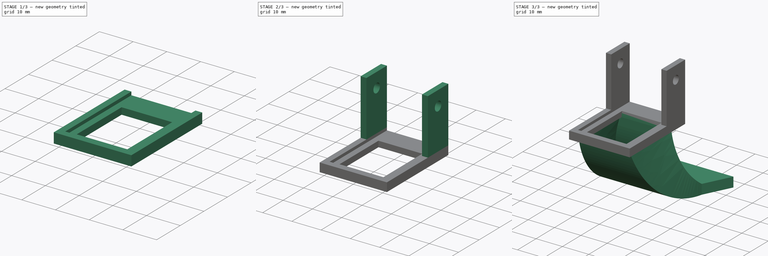
[diagram: build sequence overview — one tinted view per stage of 3, left to right]
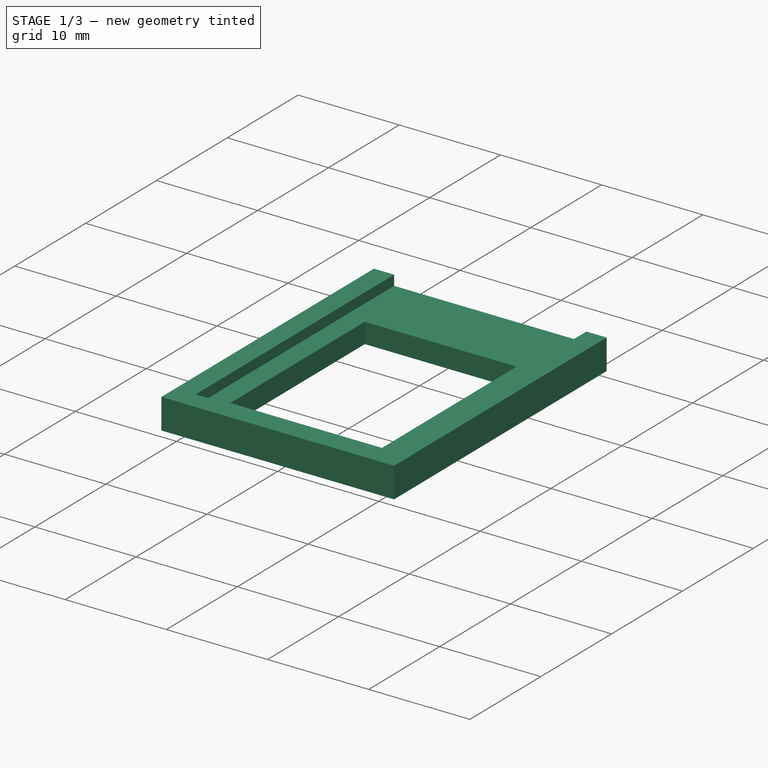
[diagram: stage 1 of 3 — iso view after this stage's code; geometry added in this stage tinted green]
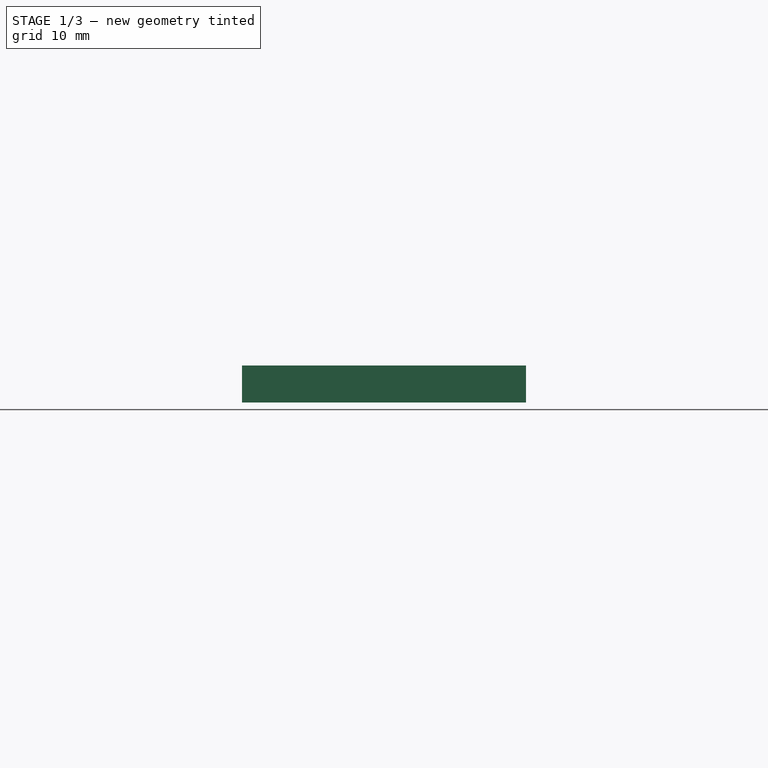
[diagram: stage 1 of 3 — front view after this stage's code; geometry added in this stage tinted green]
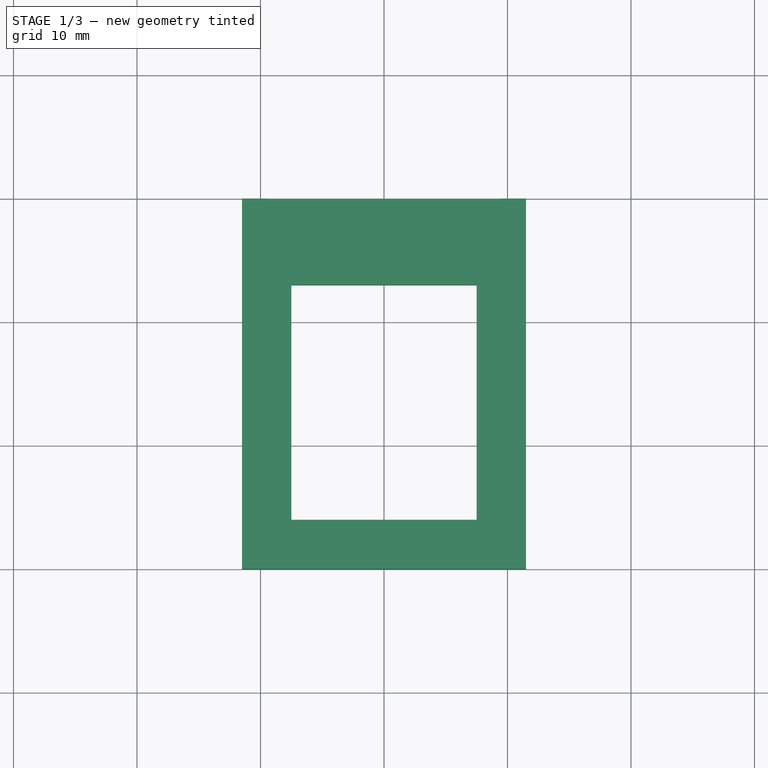
[diagram: stage 1 of 3 — top view after this stage's code; geometry added in this stage tinted green]
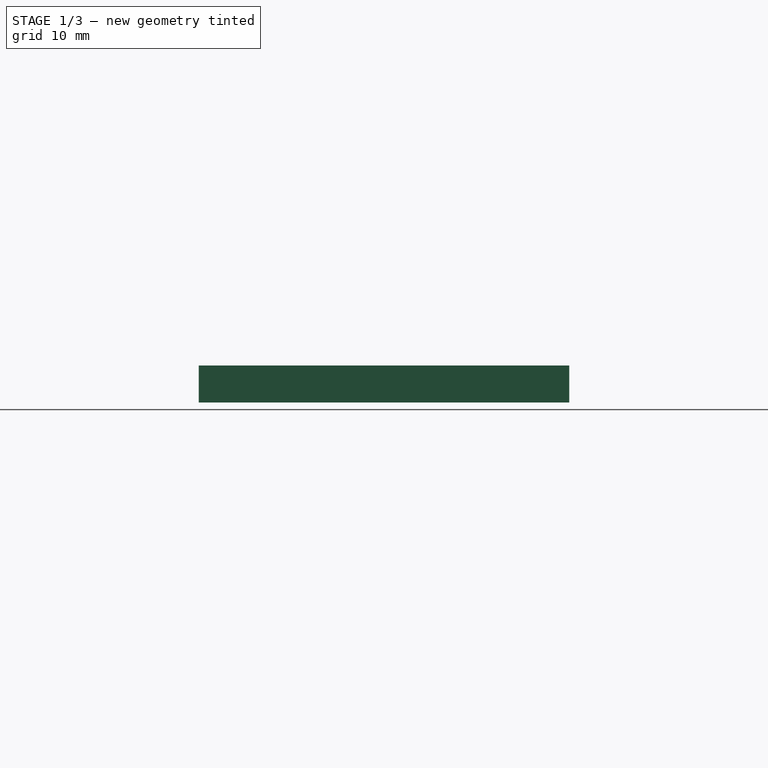
[diagram: stage 1 of 3 — right view after this stage's code; geometry added in this stage tinted green]
FCSTD DOCUMENT  (FreeCAD 0.18R15441 (Git))
Label: BackTurbinePipe_Direct
License: All rights reserved
LicenseURL: http://en.wikipedia.org/wiki/All_rights_reserved
objects: Sketcher::SketchObject×7, PartDesign::Pad×3, PartDesign::Plane×2, PartDesign::AdditivePipe×2, PartDesign::Pocket×1, PartDesign::Body×1, App::Part×1
note: 22 computed .brp shape members not serialized (recipe doc carries the construction recipe); baked Part::Feature solids carry a one-line shape summary decoded from their .brp

FEATURE [Sketcher::SketchObject] Sketch  label="CasingBaseSketch"
  MapMode = 5
  Support = -> [XY_Plane001]
  sketch-geometry (8):
    g0: LineSegment StartX=-11.5 StartY=-10 StartZ=0 EndX=11.5 EndY=-10 EndZ=0
    g1: LineSegment StartX=11.5 StartY=-10 StartZ=0 EndX=11.5 EndY=-40 EndZ=0
    g2: LineSegment StartX=11.5 StartY=-40 StartZ=0 EndX=-11.5 EndY=-40 EndZ=0
    g3: LineSegment StartX=-11.5 StartY=-40 StartZ=0 EndX=-11.5 EndY=-10 EndZ=0
    g4: LineSegment StartX=-7.5 StartY=-17 StartZ=0 EndX=7.5 EndY=-17 EndZ=0
    g5: LineSegment StartX=7.5 StartY=-17 StartZ=0 EndX=7.5 EndY=-36 EndZ=0
    g6: LineSegment StartX=7.5 StartY=-36 StartZ=0 EndX=-7.5 EndY=-36 EndZ=0
    g7: LineSegment StartX=-7.5 StartY=-36 StartZ=0 EndX=-7.5 EndY=-17 EndZ=0
  constraints (23):
    c: Coincident(g0,g1)
    c: Coincident(g1,g2)
    c: Coincident(g2,g3)
    c: Coincident(g3,g0)
    c: Horizontal(g2)
    c: Vertical(g1)
    c: Vertical(g3)
    c: Coincident(g4,g5)
    c: Coincident(g5,g6)
    c: Coincident(g6,g7)
    c: Coincident(g7,g4)
    c: Horizontal(g4)
    c: Horizontal(g6)
    c: Vertical(g5)
    c: Vertical(g7)
    c: Distance(g6) = 15
    c: Distance(g7) = 19
    c: Distance(g4,g3) = 4
    c: Distance(g4,g1) = 4
    c: Distance(g6,g2) = 4
    c: Distance(g4,g0) = 7
    c: DistanceY(g-1,g2) = -40
    c: Symmetric(g0,g0,g-2)
FEATURE [PartDesign::Pad] Pad  label="CasingBasePad"
  Length = 2
  Length2 = 100
  Profile = -> Sketch
  Reversed = true
  Type = 0
FEATURE [Sketcher::SketchObject] Sketch001  label="CasingInterfaceSketch"
  ExternalGeometry = -> [Sketch]
  MapMode = 5
  Support = -> [XY_Plane001]
  sketch-geometry (9):
    g0: LineSegment StartX=-11.5 StartY=-40 StartZ=0 EndX=11.5 EndY=-40 EndZ=0
    g1: LineSegment StartX=-11.5 StartY=-40 StartZ=0 EndX=-11.5 EndY=-10 EndZ=0
    g2: LineSegment StartX=11.5 StartY=-40 StartZ=0 EndX=11.5 EndY=-10 EndZ=0
    g3: LineSegment StartX=-11.5 StartY=-10 StartZ=0 EndX=-9.5 EndY=-10 EndZ=0
    g4: LineSegment StartX=-9.5 StartY=-10 StartZ=0 EndX=-9.5 EndY=-38 EndZ=0
    g5: LineSegment StartX=-9.5 StartY=-38 StartZ=0 EndX=9.5 EndY=-38 EndZ=0
    g6: LineSegment StartX=9.5 StartY=-38 StartZ=0 EndX=9.5 EndY=-10 EndZ=0
    g7: LineSegment StartX=9.5 StartY=-10 StartZ=0 EndX=11.5 EndY=-10 EndZ=0
    g8: LineSegment [constr] StartX=-9.5 StartY=-38 StartZ=0 EndX=-9.5 EndY=-40 EndZ=0
  constraints (25):
    c: Coincident(g0,g-3)
    c: Coincident(g0,g-3)
    c: Coincident(g1,g0)
    c: Vertical(g1)
    c: Coincident(g2,g0)
    c: Vertical(g2)
    c: Coincident(g3,g1)
    c: Coincident(g4,g3)
    c: Vertical(g4)
    c: Coincident(g5,g4)
    c: Horizontal(g5)
    c: Coincident(g6,g5)
    c: Vertical(g6)
    c: Coincident(g7,g6)
    c: Coincident(g7,g2)
    c: Horizontal(g7)
    c: Equal(g1,g2)
    c: Horizontal(g3)
    c: Coincident(g8,g4)
    c: PointOnObject(g8,g0)
    c: Vertical(g8)
    c: Equal(g3,g7)
    c: Equal(g7,g8)
    c: Distance(g3) = 2
    c: Distance(g1) = 30
FEATURE [PartDesign::Pad] Pad001  label="CasingInterfacePad"
  BaseFeature = -> Pad
  Length = 1
  Length2 = 100
  Profile = -> Sketch001
  Type = 0
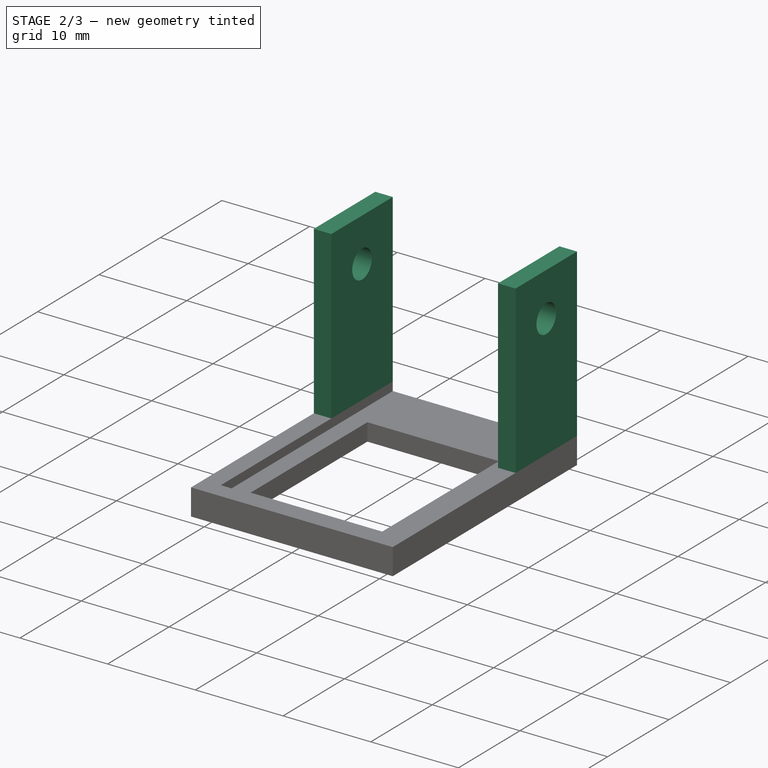
[diagram: stage 2 of 3 — iso view after this stage's code; geometry added in this stage tinted green]
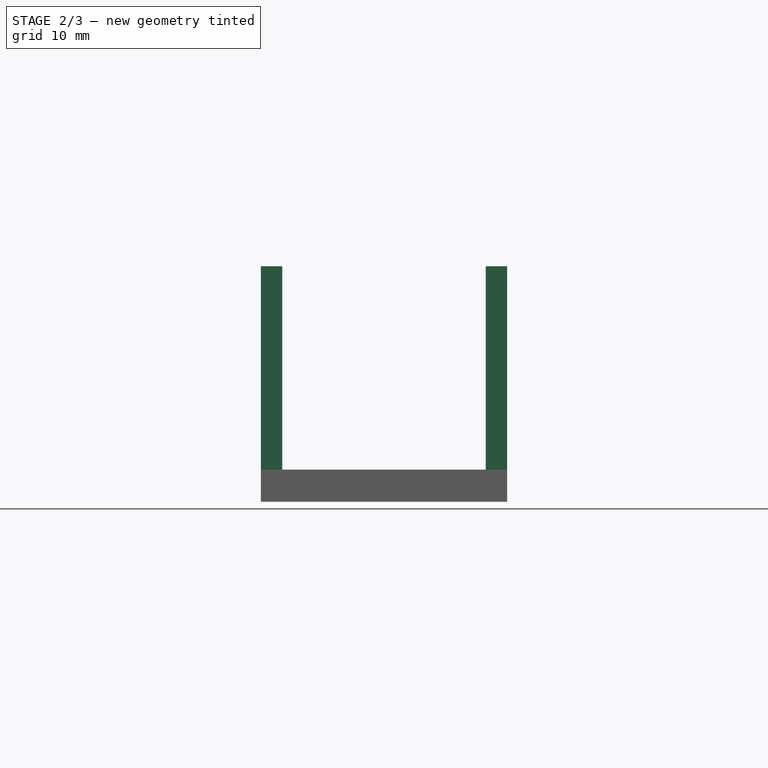
[diagram: stage 2 of 3 — front view after this stage's code; geometry added in this stage tinted green]
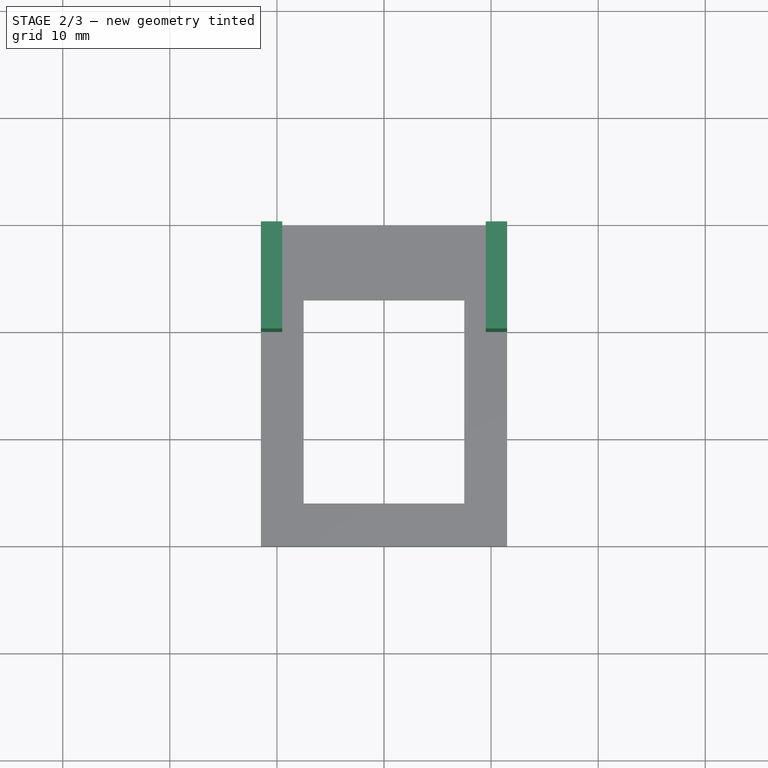
[diagram: stage 2 of 3 — top view after this stage's code; geometry added in this stage tinted green]
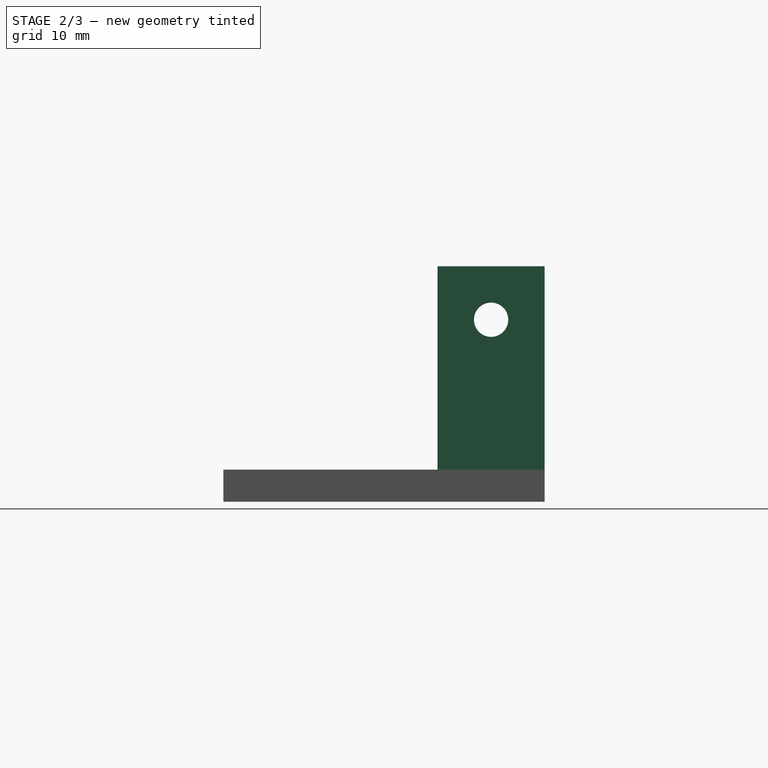
[diagram: stage 2 of 3 — right view after this stage's code; geometry added in this stage tinted green]
FEATURE [Sketcher::SketchObject] Sketch002  label="CasingClippingSketch"
  ExternalGeometry = -> [Sketch001]
  MapMode = 5
  Placement = pos=(0,0,0) rot=(0.57735,0.57735,0.57735;2.0944rad)
  Support = -> [YZ_Plane001]
  sketch-geometry (8):
    g0: Circle CenterX=-15 CenterY=15 CenterZ=0 NormalX=0 NormalY=0 NormalZ=1 AngleXU=0 Radius=1.6
    g1: LineSegment StartX=-10 StartY=-2e-12 StartZ=0 EndX=-10 EndY=20 EndZ=0
    g2: LineSegment StartX=-10 StartY=20 StartZ=0 EndX=-20 EndY=20 EndZ=0
    g3: LineSegment StartX=-20 StartY=20 StartZ=0 EndX=-20 EndY=0 EndZ=0
    g4: LineSegment StartX=-20 StartY=0 StartZ=0 EndX=-10 EndY=-2e-12 EndZ=0
    g5: LineSegment [constr] StartX=-15 StartY=15 StartZ=0 EndX=-10 EndY=15 EndZ=0
    g6: LineSegment [constr] StartX=-15 StartY=15 StartZ=0 EndX=-20 EndY=15 EndZ=0
    g7: LineSegment [constr] StartX=-15 StartY=15 StartZ=0 EndX=-15 EndY=20 EndZ=0
  constraints (23):
    c: DistanceX(g-2,g0) = -15
    c: DistanceY(g-1,g0) = 15
    c: Coincident(g1,g-3)
    c: Vertical(g1)
    c: Coincident(g2,g1)
    c: Horizontal(g2)
    c: Coincident(g3,g2)
    c: PointOnObject(g3,g-1)
    c: Vertical(g3)
    c: Coincident(g4,g3)
    c: Coincident(g4,g1)
    c: Coincident(g5,g0)
    c: PointOnObject(g5,g1)
    c: Horizontal(g5)
    c: Coincident(g6,g0)
    c: PointOnObject(g6,g3)
    c: Horizontal(g6)
    c: Equal(g6,g5)
    c: Coincident(g7,g0)
    c: PointOnObject(g7,g2)
    c: Vertical(g7)
    c: Equal(g7,g6)
    c: Radius(g0) = 1.6
FEATURE [PartDesign::Pad] Pad002  label="CasingClippingPad"
  BaseFeature = -> Pad001
  Length = 23
  Length2 = 100
  Midplane = true
  Profile = -> Sketch002
  Type = 0
FEATURE [PartDesign::Pocket] Pocket  label="CasingClippingPocket"
  BaseFeature = -> Pad002
  Length = 19
  Length2 = 100
  Midplane = true
  Profile = -> Sketch002
  Type = 0
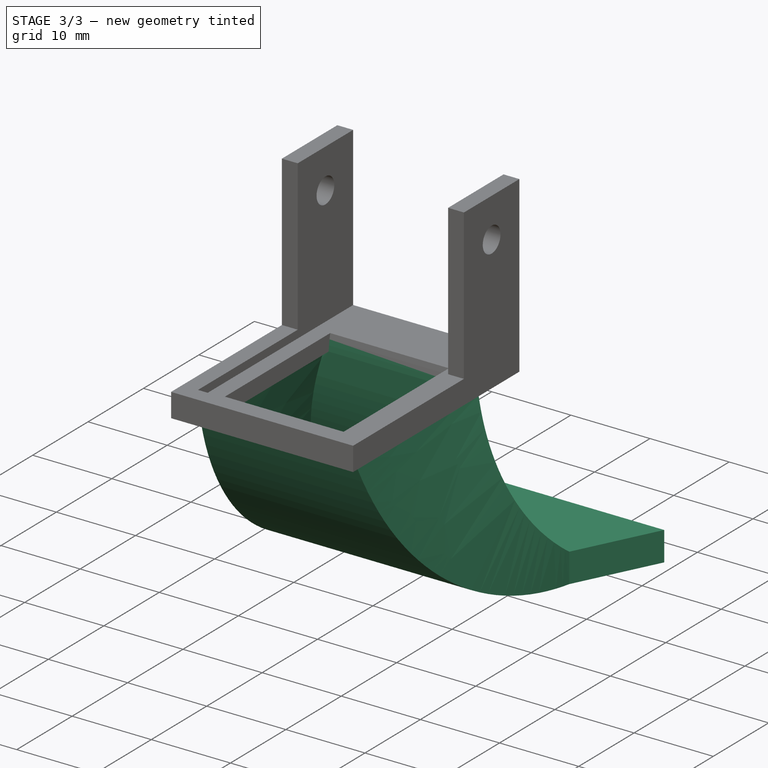
[diagram: stage 3 of 3 — iso view after this stage's code; geometry added in this stage tinted green]
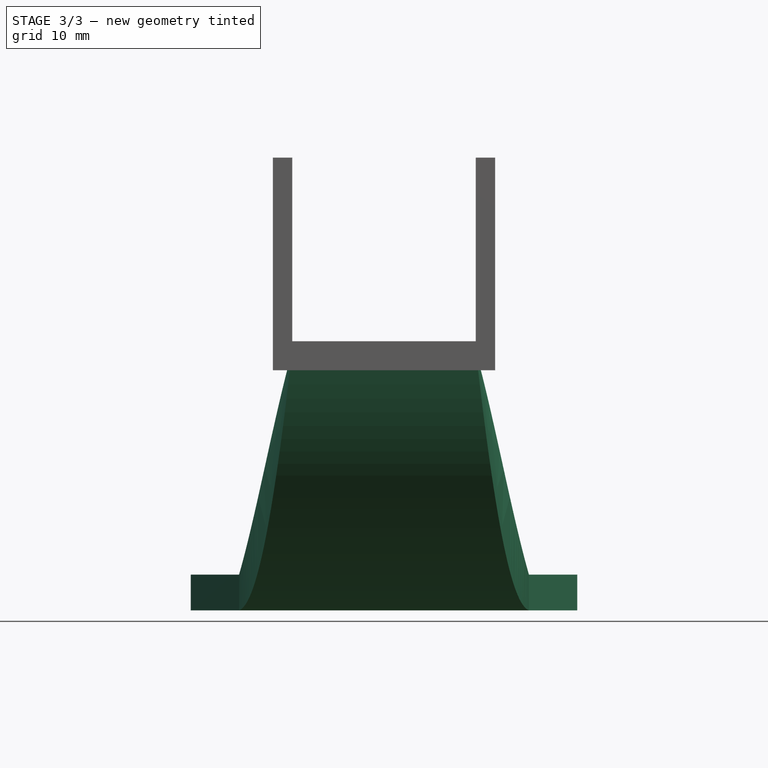
[diagram: stage 3 of 3 — front view after this stage's code; geometry added in this stage tinted green]
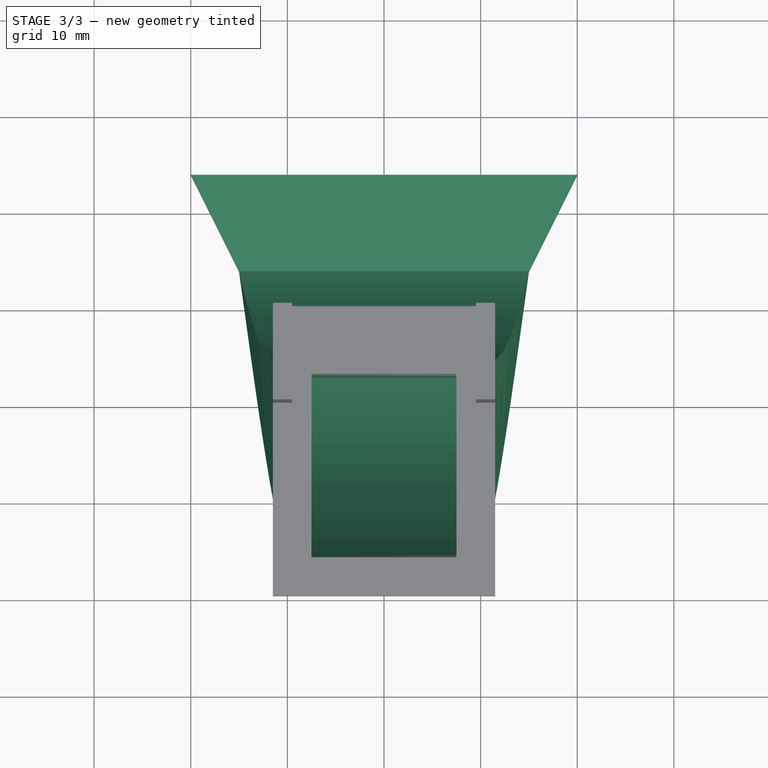
[diagram: stage 3 of 3 — top view after this stage's code; geometry added in this stage tinted green]
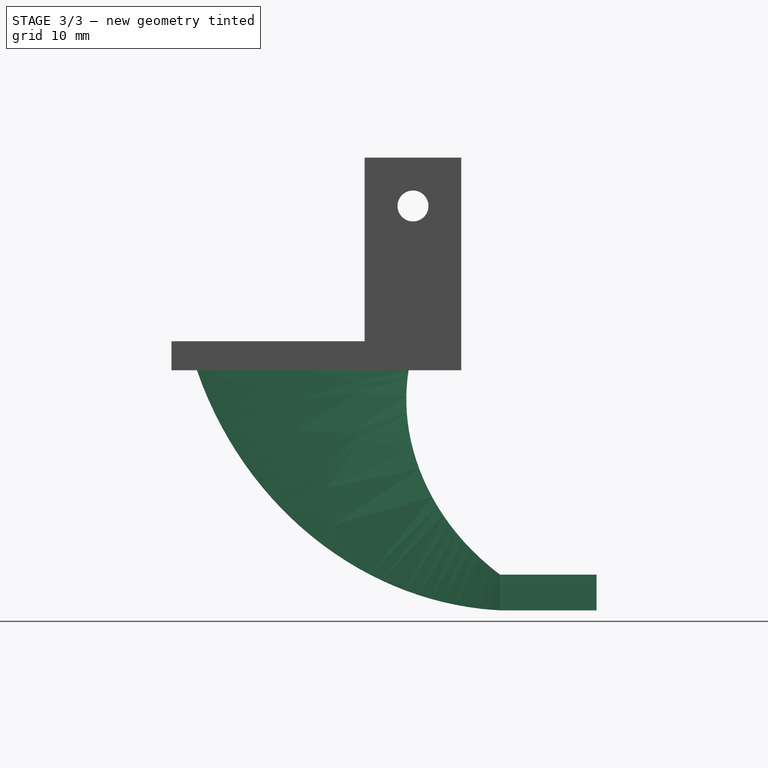
[diagram: stage 3 of 3 — right view after this stage's code; geometry added in this stage tinted green]
FEATURE [Sketcher::SketchObject] Sketch003  label="AirPipeStartSketch"
  ExternalGeometry = -> [Sketch]
  MapMode = 5
  Support = -> [XY_Plane001]
  sketch-geometry (12):
    g0: LineSegment StartX=-7.5 StartY=-36 StartZ=0 EndX=-7.5 EndY=-17 EndZ=0
    g1: LineSegment StartX=-7.5 StartY=-17 StartZ=0 EndX=7.5 EndY=-17 EndZ=0
    g2: LineSegment StartX=7.5 StartY=-17 StartZ=0 EndX=7.5 EndY=-36 EndZ=0
    g3: LineSegment StartX=7.5 StartY=-36 StartZ=0 EndX=-7.5 EndY=-36 EndZ=0
    g4: LineSegment StartX=-9.5 StartY=-15 StartZ=0 EndX=-9.5 EndY=-38 EndZ=0
    g5: LineSegment StartX=-9.5 StartY=-38 StartZ=0 EndX=9.5 EndY=-38 EndZ=0
    g6: LineSegment StartX=9.5 StartY=-38 StartZ=0 EndX=9.5 EndY=-15 EndZ=0
    g7: LineSegment StartX=9.5 StartY=-15 StartZ=0 EndX=-9.5 EndY=-15 EndZ=0
    g8: LineSegment [constr] StartX=-7.5 StartY=-17 StartZ=0 EndX=-7.5 EndY=-15 EndZ=0
    g9: LineSegment [constr] StartX=-7.5 StartY=-17 StartZ=0 EndX=-9.5 EndY=-17 EndZ=0
    g10: LineSegment [constr] StartX=-7.5 StartY=-36 StartZ=0 EndX=-7.5 EndY=-38 EndZ=0
    g11: LineSegment [constr] StartX=7.5 StartY=-36 StartZ=0 EndX=9.5 EndY=-36 EndZ=0
  constraints (32):
    c: Coincident(g0,g-5)
    c: Coincident(g0,g-4)
    c: Coincident(g1,g0)
    c: Coincident(g1,g-6)
    c: Coincident(g2,g1)
    c: Coincident(g2,g-6)
    c: Coincident(g3,g2)
    c: Coincident(g3,g0)
    c: Vertical(g4)
    c: Coincident(g5,g4)
    c: Horizontal(g5)
    c: Coincident(g6,g5)
    c: Vertical(g6)
    c: Coincident(g7,g6)
    c: Coincident(g7,g4)
    c: Horizontal(g7)
    c: Coincident(g8,g0)
    c: PointOnObject(g8,g7)
    c: Vertical(g8)
    c: Coincident(g9,g0)
    c: PointOnObject(g9,g4)
    c: Coincident(g10,g0)
    c: PointOnObject(g10,g5)
    c: Vertical(g10)
    c: Equal(g10,g9)
    c: Equal(g9,g8)
    c: Distance(g8) = 2
    c: Coincident(g11,g2)
    c: PointOnObject(g11,g6)
    c: Horizontal(g11)
    c: Equal(g11,g10)
    c: Horizontal(g9)
FEATURE [Sketcher::SketchObject] Sketch004  label="AirPipePathSketch"
  ExternalGeometry = -> [Sketch003]
  MapMode = 5
  Placement = pos=(0,0,0) rot=(0.57735,0.57735,0.57735;2.0944rad)
  Support = -> [YZ_Plane001]
  sketch-geometry (5):
    g0: LineSegment [constr] StartX=-36 StartY=-4.9116e-12 StartZ=0 EndX=-26.5 EndY=-3.8389e-12 EndZ=0
    g1: LineSegment [constr] StartX=-17 StartY=-2.7663e-12 StartZ=0 EndX=-26.5 EndY=-3.8389e-12 EndZ=0
    g2: LineSegment [constr] StartX=-6 StartY=0 StartZ=0 EndX=-6 EndY=-25 EndZ=0
    g3: ArcOfCircle CenterX=3.29223 CenterY=3.52463 CenterZ=0 NormalX=0 NormalY=0 NormalZ=1 AngleXU=0 Radius=30 StartAngle=3.25935 EndAngle=4.39747
    g4: LineSegment StartX=-6 StartY=-25 StartZ=0 EndX=4 EndY=-25 EndZ=0
  constraints (15):
    c: Coincident(g0,g-3)
    c: Coincident(g1,g-4)
    c: Coincident(g1,g0)
    c: Equal(g1,g0)
    c: Parallel(g1,g0)
    c: PointOnObject(g2,g-1)
    c: Vertical(g2)
    c: Distance(g1,g2) = 11
    c: Distance(g2) = 25
    c: Coincident(g3,g0)
    c: Coincident(g3,g2)
    c: Radius(g3) = 30
    c: Coincident(g4,g3)
    c: Horizontal(g4)
    c: Distance(g4) = 10
FEATURE [PartDesign::Plane] DatumPlane  label="AirPipeMidPlane"
  Length = 48.6579
  MapMode = 7
  Placement = pos=(2.146e-12,-6,-25) rot=(1,0,0;1.5708rad)
  ResizeMode = 0
  Support = -> [Sketch004]
  Width = 55.5079
FEATURE [Sketcher::SketchObject] Sketch005  label="AirPipeMidSketch"
  MapMode = 5
  Placement = pos=(2.146e-12,-6,-25) rot=(1,0,0;1.5708rad)
  Support = -> [DatumPlane]
  sketch-geometry (12):
    g0: LineSegment StartX=-14.4 StartY=1.25 StartZ=0 EndX=14.4 EndY=1.25 EndZ=0
    g1: LineSegment StartX=14.4 StartY=1.25 StartZ=0 EndX=14.4 EndY=-1.25 EndZ=0
    g2: LineSegment StartX=14.4 StartY=-1.25 StartZ=0 EndX=-14.4 EndY=-1.25 EndZ=0
    g3: LineSegment StartX=-14.4 StartY=-1.25 StartZ=0 EndX=-14.4 EndY=1.25 EndZ=0
    g4: LineSegment StartX=-15 StartY=1.85 StartZ=0 EndX=15 EndY=1.85 EndZ=0
    g5: LineSegment StartX=15 StartY=1.85 StartZ=0 EndX=15 EndY=-1.85 EndZ=0
    g6: LineSegment StartX=15 StartY=-1.85 StartZ=0 EndX=-15 EndY=-1.85 EndZ=0
    g7: LineSegment StartX=-15 StartY=-1.85 StartZ=0 EndX=-15 EndY=1.85 EndZ=0
    g8: LineSegment [constr] StartX=-14.4 StartY=-1.25 StartZ=0 EndX=-14.4 EndY=-1.85 EndZ=0
    g9: LineSegment [constr] StartX=-14.4 StartY=-1.25 StartZ=0 EndX=-15 EndY=-1.25 EndZ=0
    g10: LineSegment [constr] StartX=14.4 StartY=1.25 StartZ=0 EndX=14.4 EndY=1.85 EndZ=0
    g11: LineSegment [constr] StartX=14.4 StartY=-1.25 StartZ=0 EndX=15 EndY=-1.25 EndZ=0
  constraints (34):
    c: Coincident(g0,g1)
    c: Coincident(g1,g2)
    c: Coincident(g2,g3)
    c: Coincident(g3,g0)
    c: Horizontal(g0)
    c: Vertical(g1)
    c: Coincident(g4,g5)
    c: Coincident(g5,g6)
    c: Coincident(g6,g7)
    c: Coincident(g7,g4)
    c: Horizontal(g4)
    c: Horizontal(g6)
    c: Vertical(g5)
    c: Vertical(g7)
    c: Symmetric(g2,g1,g-2)
    c: Coincident(g8,g2)
    c: PointOnObject(g8,g6)
    c: Vertical(g8)
    c: Coincident(g9,g2)
    c: PointOnObject(g9,g7)
    c: Horizontal(g9)
    c: Coincident(g10,g0)
    c: PointOnObject(g10,g4)
    c: Vertical(g10)
    c: Equal(g10,g9)
    c: Equal(g9,g8)
    c: Symmetric(g2,g0,g-1)
    c: Distance(g9) = 0.6
    c: Distance(g3) = 2.5
    c: Distance(g4) = 30
    c: Coincident(g11,g1)
    c: PointOnObject(g11,g5)
    c: Horizontal(g11)
    c: Equal(g11,g10)
FEATURE [PartDesign::AdditivePipe] AdditivePipe  label="AirPipe_MidSection"
  AuxilleryCurvelinear = true
  AuxillerySpineTangent = false
  BaseFeature = -> Pocket
  Binormal = (0,0,0)
  Mode = 0
  Profile = -> Sketch003
  Sections = -> [Sketch005]
  Spine = -> Sketch004 [Edge1]
  SpineTangent = false
  Transformation = 1
  Transition = 0
FEATURE [PartDesign::Plane] DatumPlane001  label="AirPipeEndPlane"
  Length = 48.6579
  MapMode = 7
  Placement = pos=(3.2739e-12,4,-25) rot=(1,0,0;1.5708rad)
  ResizeMode = 0
  Support = -> [Sketch004]
  Width = 55.5079
FEATURE [Sketcher::SketchObject] Sketch006  label="AirPipeEndSketch"
  MapMode = 5
  Placement = pos=(3.2739e-12,4,-25) rot=(1,0,0;1.5708rad)
  Support = -> [DatumPlane001]
  sketch-geometry (12):
    g0: LineSegment StartX=-19.4 StartY=1.25 StartZ=0 EndX=19.4 EndY=1.25 EndZ=0
    g1: LineSegment StartX=19.4 StartY=1.25 StartZ=0 EndX=19.4 EndY=-1.25 EndZ=0
    g2: LineSegment StartX=19.4 StartY=-1.25 StartZ=0 EndX=-19.4 EndY=-1.25 EndZ=0
    g3: LineSegment StartX=-19.4 StartY=-1.25 StartZ=0 EndX=-19.4 EndY=1.25 EndZ=0
    g4: LineSegment StartX=-20 StartY=1.85 StartZ=0 EndX=20 EndY=1.85 EndZ=0
    g5: LineSegment StartX=20 StartY=1.85 StartZ=0 EndX=20 EndY=-1.85 EndZ=0
    g6: LineSegment StartX=20 StartY=-1.85 StartZ=0 EndX=-20 EndY=-1.85 EndZ=0
    g7: LineSegment StartX=-20 StartY=-1.85 StartZ=0 EndX=-20 EndY=1.85 EndZ=0
    g8: LineSegment [constr] StartX=-19.4 StartY=-1.25 StartZ=0 EndX=-19.4 EndY=-1.85 EndZ=0
    g9: LineSegment [constr] StartX=-19.4 StartY=-1.25 StartZ=0 EndX=-20 EndY=-1.25 EndZ=0
    g10: LineSegment [constr] StartX=19.4 StartY=1.25 StartZ=0 EndX=19.4 EndY=1.85 EndZ=0
    g11: LineSegment [constr] StartX=19.4 StartY=-1.25 StartZ=0 EndX=20 EndY=-1.25 EndZ=0
  constraints (34):
    c: Coincident(g0,g1)
    c: Coincident(g1,g2)
    c: Coincident(g2,g3)
    c: Coincident(g3,g0)
    c: Horizontal(g0)
    c: Vertical(g1)
    c: Coincident(g4,g5)
    c: Coincident(g5,g6)
    c: Coincident(g6,g7)
    c: Coincident(g7,g4)
    c: Horizontal(g4)
    c: Horizontal(g6)
    c: Vertical(g5)
    c: Vertical(g7)
    c: Symmetric(g2,g1,g-2)
    c: Coincident(g8,g2)
    c: PointOnObject(g8,g6)
    c: Vertical(g8)
    c: Coincident(g9,g2)
    c: PointOnObject(g9,g7)
    c: Horizontal(g9)
    c: Coincident(g10,g0)
    c: PointOnObject(g10,g4)
    c: Vertical(g10)
    c: Equal(g10,g9)
    c: Equal(g9,g8)
    c: Symmetric(g2,g0,g-1)
    c: Distance(g9) = 0.6
    c: Distance(g3) = 2.5
    c: Distance(g4) = 40
    c: Coincident(g11,g1)
    c: PointOnObject(g11,g5)
    c: Horizontal(g11)
    c: Equal(g11,g10)
FEATURE [PartDesign::AdditivePipe] AdditivePipe001  label="AirPipe_EndSection"
  AuxilleryCurvelinear = true
  AuxillerySpineTangent = false
  BaseFeature = -> AdditivePipe
  Binormal = (0,0,0)
  Mode = 0
  Profile = -> Sketch005
  Sections = -> [Sketch006]
  Spine = -> Sketch004 [Edge2]
  SpineTangent = false
  Transformation = 1
  Transition = 0
FEATURE [PartDesign::Body] Body  label="PipeBody"
  Group = -> [Sketch,Pad,Sketch001,Pad001,Sketch002,Pad002,Pocket,Sketch003,Sketch004,DatumPlane,Sketch005,AdditivePipe,DatumPlane001,Sketch006,AdditivePipe001]
  Origin = -> Origin001
  Tip = -> AdditivePipe001
FEATURE [App::Part] Part  label="PipePart"
  Group = -> [Body]
  License = CC BY 3.0
  LicenseURL = http://creativecommons.org/licenses/by/3.0/
  Origin = -> Origin
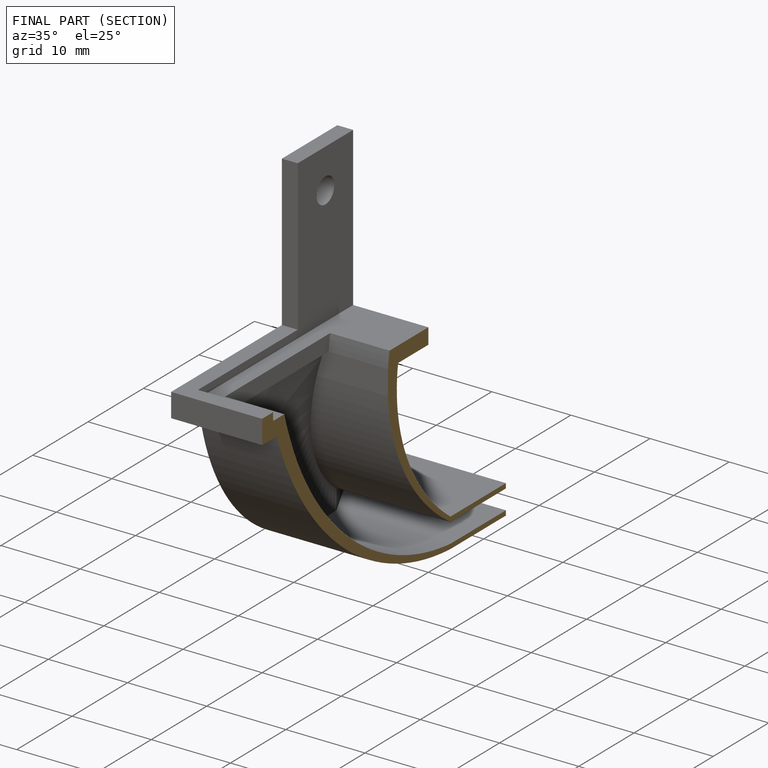
[diagram: finished part — half-section view (interior)]
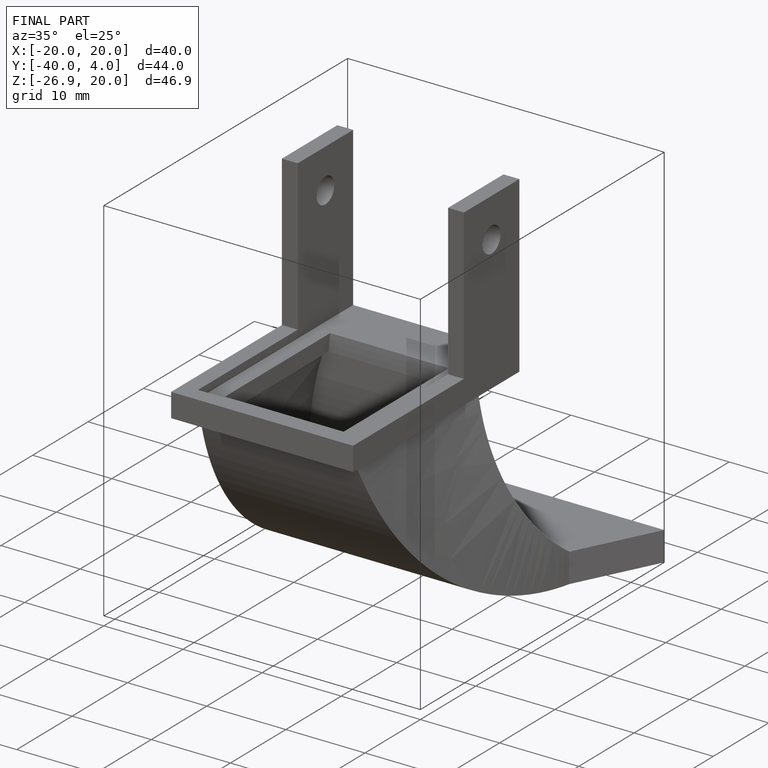
[diagram: finished part — iso view with bounding-box wireframe]
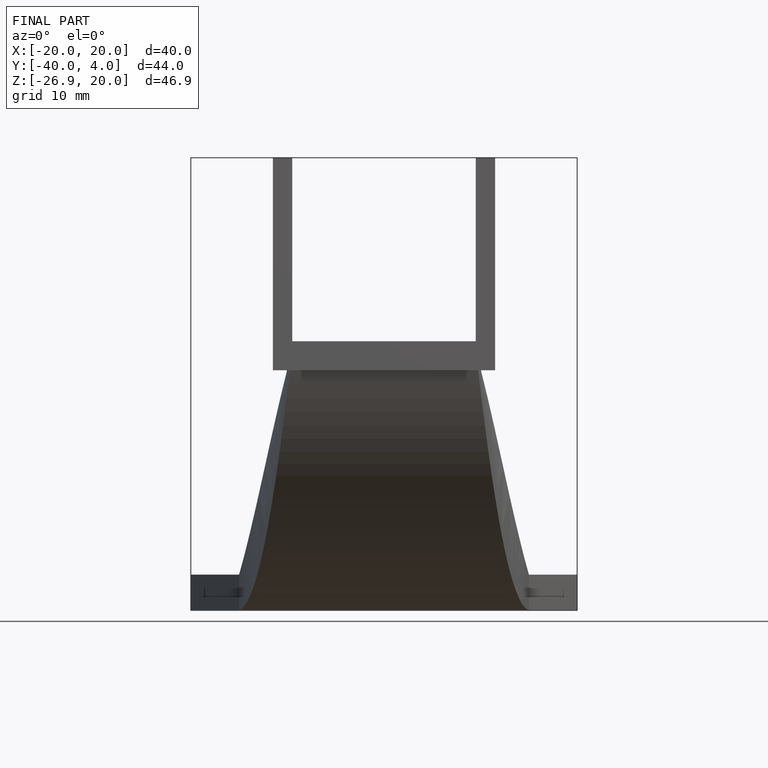
[diagram: finished part — front view with bounding-box wireframe]
